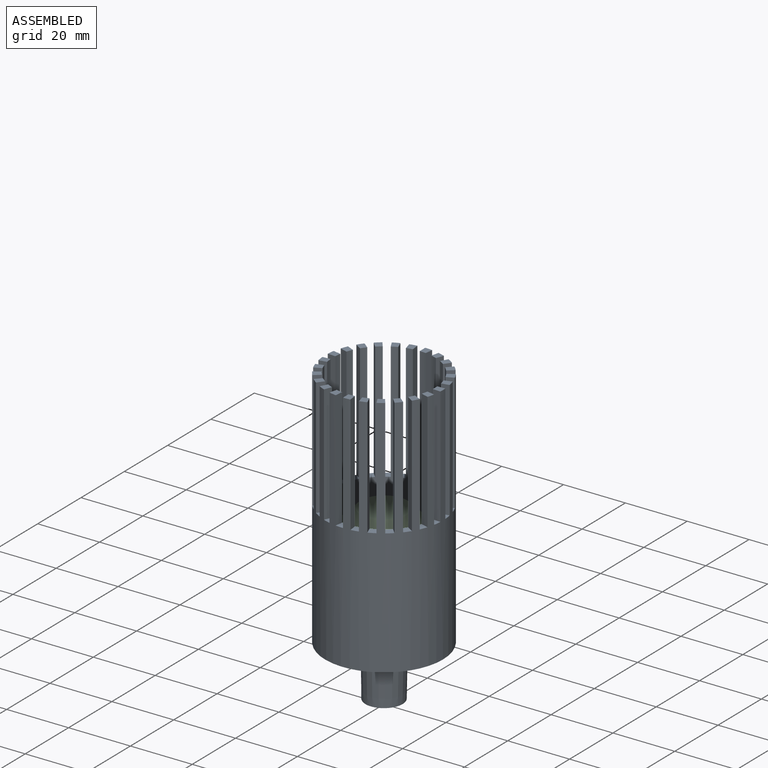
[diagram: assembled view]
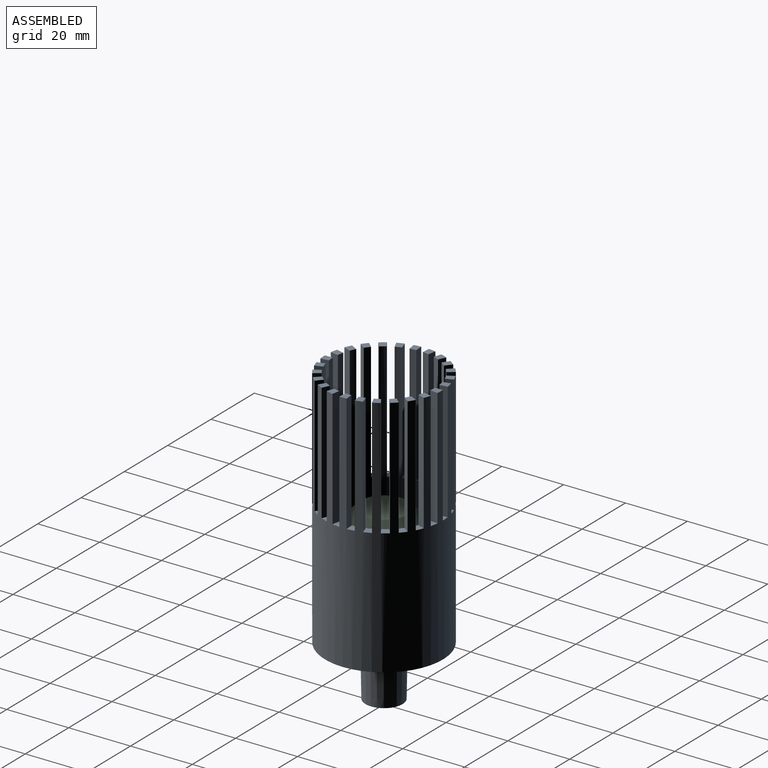
[diagram: assembled view, second angle]
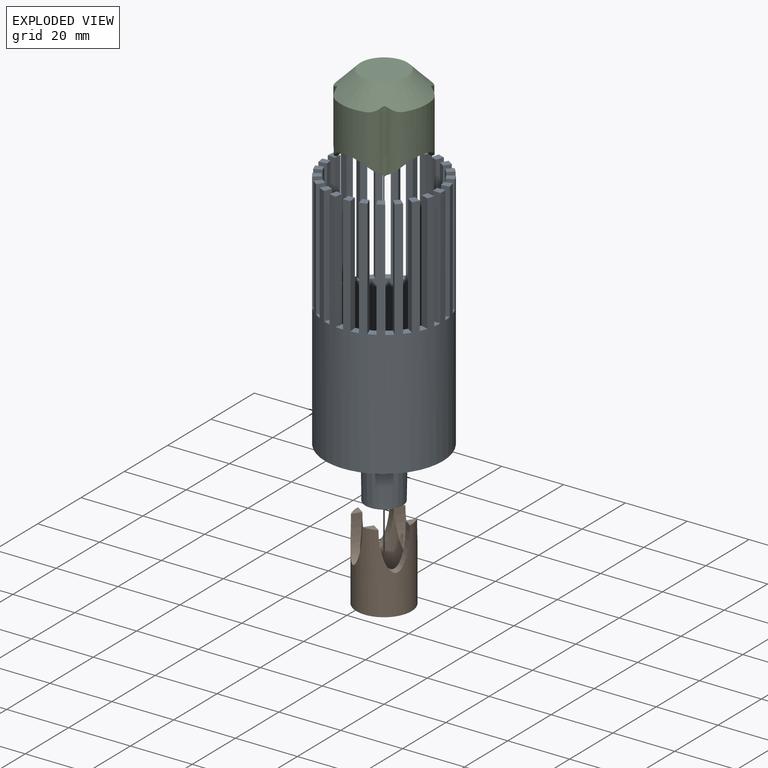
[diagram: exploded view]
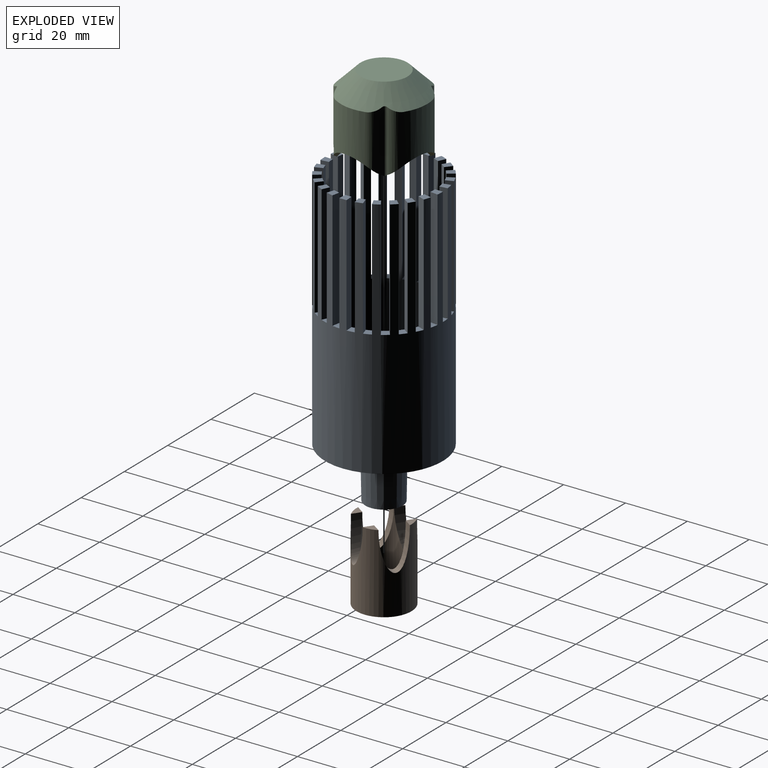
[diagram: exploded view, second angle]
ASSEMBLY  parts=3 mates=2
PART A: 112 faces, bbox 38.1x38.1x95.3 mm
  f0: plane 2.92x2.73mm, normal (0,0,1), area 5.8mm2, adj f25,f27,f30,f102
  f1: plane 3.27x3.15mm, normal (0,0,1), area 5.8mm2, adj f25,f27,f99,f101
  f2: plane 3.42x3.38mm, normal (0,0,1), area 5.8mm2, adj f25,f27,f96,f98
  f3: plane 3.4x3.35mm, normal (0,0,1), area 5.8mm2, adj f25,f27,f93,f95
  f4: plane 3.2x3.07mm, normal (0,0,1), area 5.8mm2, adj f25,f27,f90,f92
  f5: plane 2.81x2.6mm, normal (0,0,1), area 5.8mm2, adj f25,f27,f87,f89
  f6: plane 2.8x2.59mm, normal (0,0,1), area 5.8mm2, adj f25,f27,f84,f86
  f7: plane 3.2x3.06mm, normal (0,0,1), area 5.8mm2, adj f25,f27,f81,f83
  f8: plane 3.4x3.35mm, normal (0,0,1), area 5.8mm2, adj f25,f27,f78,f80
  f9: plane 3.42x3.38mm, normal (0,0,1), area 5.8mm2, adj f25,f27,f75,f77
  f10: plane 3.27x3.16mm, normal (0,0,1), area 5.8mm2, adj f25,f27,f72,f74
  f11: plane 2.92x2.73mm, normal (0,0,1), area 5.8mm2, adj f25,f27,f69,f71
  f12: plane 2.67x2.45mm, normal (0,0,1), area 5.8mm2, adj f25,f27,f66,f68
  f13: plane 3.12x2.96mm, normal (0,0,1), area 5.8mm2, adj f25,f27,f63,f65
  f14: plane 3.37x3.29mm, normal (0,0,1), area 5.8mm2, adj f25,f27,f60,f62
  f15: plane 3.42x3.41mm, normal (0,0,1), area 5.8mm2, adj f25,f27,f57,f59
  f16: plane 3.33x3.23mm, normal (0,0,1), area 5.8mm2, adj f25,f27,f54,f56
  f17: plane 3.03x2.86mm, normal (0,0,1), area 5.8mm2, adj f25,f27,f51,f53
  f18: plane 2.58x2.46mm, normal (0,0,1), area 5.8mm2, adj f25,f27,f48,f50
  f19: plane 3.02x2.85mm, normal (0,0,1), area 5.8mm2, adj f25,f27,f45,f47
  f20: plane 3.33x3.23mm, normal (0,0,1), area 5.8mm2, adj f25,f27,f42,f44
  f21: plane 3.42x3.41mm, normal (0,0,1), area 5.8mm2, adj f25,f27,f39,f41
  f22: plane 3.37x3.3mm, normal (0,0,1), area 5.8mm2, adj f25,f27,f36,f38
  f23: plane 3.12x2.97mm, normal (0,0,1), area 5.8mm2, adj f25,f27,f33,f35
  f24: plane 2.68x2.45mm, normal (0,0,1), area 5.8mm2, adj f25,f27,f29,f32
  f25: cylinder r=19.05mm len=78.74mm, axis (0,0,-1), area 7081.2mm2, adj f0,f1,f2,f3,f4,f5,f6,f7
  f26: plane 38.1x38.1mm, normal (0,0,-1), area 1015.2mm2, adj f25,f107
  f27: cylinder r=16.51mm len=76.2mm, axis (0,0,-1), area 5873.6mm2, adj f0,f1,f2,f3,f4,f5,f6,f7
  f28: plane 33.02x33.02mm, normal (0,0,1), area 729.7mm2, adj f27,f104
  f29: plane 38.1x2.54mm, normal (-1,0,0), area 96.8mm2, adj f24,f25,f27,f31
  f30: plane 38.1x2.52mm, normal (0.99,-0.12,0), area 96.8mm2, adj f0,f25,f27,f31
  f31: plane 2.66x2.32mm, normal (0,0,1), area 5.5mm2, adj f25,f27,f29,f30
  f32: plane 38.1x2.52mm, normal (0.99,0.13,0), area 96.8mm2, adj f24,f25,f27,f34
  f33: plane 38.1x2.46mm, normal (-0.97,-0.25,0), area 96.8mm2, adj f23,f25,f27,f34
  f34: plane 2.9x2.61mm, normal (0,0,1), area 5.5mm2, adj f25,f27,f32,f33
  f35: plane 38.1x2.36mm, normal (0.93,0.37,0), area 96.8mm2, adj f23,f25,f27,f37
  f36: plane 38.1x2.23mm, normal (-0.88,-0.48,0), area 96.8mm2, adj f22,f25,f27,f37
  f37: plane 3.22x3.05mm, normal (0,0,1), area 5.5mm2, adj f25,f27,f35,f36
  f38: plane 38.1x2.05mm, normal (0.81,0.59,0), area 96.8mm2, adj f22,f25,f27,f40
  f39: plane 38.1x1.85mm, normal (-0.73,-0.68,0), area 96.8mm2, adj f21,f25,f27,f40
  f40: plane 3.34x3.29mm, normal (0,0,1), area 5.5mm2, adj f25,f27,f38,f39
  f41: plane 38.1x1.96mm, normal (0.63,0.77,0), area 96.8mm2, adj f21,f25,f27,f43
  f42: plane 38.1x2.14mm, normal (-0.54,-0.84,0), area 96.8mm2, adj f20,f25,f27,f43
  f43: plane 3.33x3.25mm, normal (0,0,1), area 5.5mm2, adj f25,f27,f41,f42
  f44: plane 38.1x2.3mm, normal (0.42,0.91,0), area 96.8mm2, adj f20,f25,f27,f46
  f45: plane 38.1x2.42mm, normal (-0.31,-0.95,0), area 96.8mm2, adj f19,f25,f27,f46
  f46: plane 3.15x2.95mm, normal (0,0,1), area 5.5mm2, adj f25,f27,f44,f45
  f47: plane 38.1x2.5mm, normal (0.18,0.98,0), area 96.8mm2, adj f19,f25,f27,f49
  f48: plane 38.1x2.54mm, normal (-0.06,-1,0), area 96.8mm2, adj f18,f25,f27,f49
  f49: plane 2.78x2.47mm, normal (0,0,1), area 5.5mm2, adj f25,f27,f47,f48
  f50: plane 38.1x2.53mm, normal (-0.07,1,0), area 96.8mm2, adj f18,f25,f27,f52
  f51: plane 38.1x2.5mm, normal (0.19,-0.98,0), area 96.8mm2, adj f17,f25,f27,f52
  f52: plane 2.79x2.48mm, normal (0,0,1), area 5.5mm2, adj f25,f27,f50,f51
  f53: plane 38.1x2.41mm, normal (-0.31,0.95,0), area 96.8mm2, adj f17,f25,f27,f55
  f54: plane 38.1x2.3mm, normal (0.43,-0.9,0), area 96.8mm2, adj f16,f25,f27,f55
  f55: plane 3.16x2.95mm, normal (0,0,1), area 5.5mm2, adj f25,f27,f53,f54
  f56: plane 38.1x2.14mm, normal (-0.54,0.84,0), area 96.8mm2, adj f16,f25,f27,f58
  f57: plane 38.1x1.96mm, normal (0.64,-0.77,0), area 96.8mm2, adj f15,f25,f27,f58
  f58: plane 3.33x3.25mm, normal (0,0,1), area 5.5mm2, adj f25,f27,f56,f57
  f59: plane 38.1x1.86mm, normal (-0.73,0.68,0), area 96.8mm2, adj f15,f25,f27,f61
  f60: plane 38.1x2.06mm, normal (0.81,-0.59,0), area 96.8mm2, adj f14,f25,f27,f61
  f61: plane 3.34x3.29mm, normal (0,0,1), area 5.5mm2, adj f25,f27,f59,f60
  f62: plane 38.1x2.23mm, normal (-0.88,0.48,0), area 96.8mm2, adj f14,f25,f27,f64
  f63: plane 38.1x2.36mm, normal (0.93,-0.37,0), area 96.8mm2, adj f13,f25,f27,f64
  f64: plane 3.22x3.04mm, normal (0,0,1), area 5.5mm2, adj f25,f27,f62,f63
  f65: plane 38.1x2.46mm, normal (-0.97,0.25,0), area 96.8mm2, adj f13,f25,f27,f67
  f66: plane 38.1x2.52mm, normal (0.99,-0.13,0), area 96.8mm2, adj f12,f25,f27,f67
  f67: plane 2.89x2.6mm, normal (0,0,1), area 5.5mm2, adj f25,f27,f65,f66
  f68: plane 38.1x2.54mm, normal (-1,0,0), area 96.8mm2, adj f12,f25,f27,f70
  f69: plane 38.1x2.52mm, normal (0.99,0.13,0), area 96.8mm2, adj f11,f25,f27,f70
  f70: plane 2.67x2.33mm, normal (0,0,1), area 5.5mm2, adj f25,f27,f68,f69
  f71: plane 38.1x2.46mm, normal (-0.97,-0.25,0), area 96.8mm2, adj f11,f25,f27,f73
  f72: plane 38.1x2.36mm, normal (0.93,0.37,0), area 96.8mm2, adj f10,f25,f27,f73
  f73: plane 3.08x2.85mm, normal (0,0,1), area 5.5mm2, adj f25,f27,f71,f72
  f74: plane 38.1x2.22mm, normal (-0.87,-0.48,0), area 96.8mm2, adj f10,f25,f27,f76
  f75: plane 38.1x2.06mm, normal (0.81,0.59,0), area 96.8mm2, adj f9,f25,f27,f76
  f76: plane 3.3x3.19mm, normal (0,0,1), area 5.5mm2, adj f25,f27,f74,f75
  f77: plane 38.1x1.85mm, normal (-0.73,-0.69,0), area 96.8mm2, adj f9,f25,f27,f79
  f78: plane 38.1x1.96mm, normal (0.64,0.77,0), area 96.8mm2, adj f8,f25,f27,f79
  f79: plane 3.33x3.32mm, normal (0,0,1), area 5.5mm2, adj f25,f27,f77,f78
  f80: plane 38.1x2.15mm, normal (-0.53,-0.85,0), area 96.8mm2, adj f8,f25,f27,f82
  f81: plane 38.1x2.3mm, normal (0.43,0.9,0), area 96.8mm2, adj f7,f25,f27,f82
  f82: plane 3.27x3.12mm, normal (0,0,1), area 5.5mm2, adj f25,f27,f80,f81
  f83: plane 38.1x2.42mm, normal (-0.31,-0.95,0), area 96.8mm2, adj f7,f25,f27,f85
  f84: plane 38.1x2.5mm, normal (0.19,0.98,0), area 96.8mm2, adj f6,f25,f27,f85
  f85: plane 2.99x2.73mm, normal (0,0,1), area 5.5mm2, adj f25,f27,f83,f84
  f86: plane 38.1x2.54mm, normal (-0.06,-1,0), area 96.8mm2, adj f6,f25,f27,f88
  f87: plane 38.1x2.54mm, normal (-0.06,1,0), area 96.8mm2, adj f5,f25,f27,f88
  f88: plane 2.57x2.33mm, normal (0,0,1), area 5.5mm2, adj f25,f27,f86,f87
  f89: plane 38.1x2.49mm, normal (0.19,-0.98,0), area 96.8mm2, adj f5,f25,f27,f91
  f90: plane 38.1x2.42mm, normal (-0.31,0.95,0), area 96.8mm2, adj f4,f25,f27,f91
  f91: plane 3x2.74mm, normal (0,0,1), area 5.5mm2, adj f25,f27,f89,f90
  f92: plane 38.1x2.29mm, normal (0.43,-0.9,0), area 96.8mm2, adj f4,f25,f27,f94
  f93: plane 38.1x2.14mm, normal (-0.54,0.84,0), area 96.8mm2, adj f3,f25,f27,f94
  f94: plane 3.27x3.13mm, normal (0,0,1), area 5.5mm2, adj f25,f27,f92,f93
  f95: plane 38.1x1.95mm, normal (0.64,-0.77,0), area 96.8mm2, adj f3,f25,f27,f97
  f96: plane 38.1x1.85mm, normal (-0.73,0.68,0), area 96.8mm2, adj f2,f25,f27,f97
  f97: plane 3.33x3.32mm, normal (0,0,1), area 5.5mm2, adj f25,f27,f95,f96
  f98: plane 38.1x2.06mm, normal (0.81,-0.58,0), area 96.8mm2, adj f2,f25,f27,f100
  f99: plane 38.1x2.23mm, normal (-0.88,0.48,0), area 96.8mm2, adj f1,f25,f27,f100
  f100: plane 3.3x3.19mm, normal (0,0,1), area 5.5mm2, adj f25,f27,f98,f99
  f101: plane 38.1x2.37mm, normal (0.93,-0.36,0), area 96.8mm2, adj f1,f25,f27,f103
  f102: plane 38.1x2.46mm, normal (-0.97,0.25,0), area 96.8mm2, adj f0,f25,f27,f103
  f103: plane 3.08x2.85mm, normal (0,0,1), area 5.5mm2, adj f25,f27,f101,f102
  f104: cone r=6.35mm half-angle=1deg, axis (0,0,-1), area 740.3mm2, adj f28,f105
  f105: plane 12.04x12.04mm, normal (0,0,1), area 21.7mm2, adj f104,f106
  f106: cone r=5.08mm half-angle=1deg, axis (0,0,1), area 628mm2, adj f105,f110
  f107: cone r=6.35mm half-angle=1deg, axis (0,0,1), area 639.3mm2, adj f26,f109
  f108: cone r=5.08mm half-angle=1deg, axis (0,0,-1), area 546.6mm2, adj f109,f111
  f109: plane 12.04x12.04mm, normal (0,0,-1), area 21.7mm2, adj f107,f108
  f110: cylinder r=5.08mm len=10.16mm, axis (0,0,1), area 81.1mm2, adj f106,f111
  f111: plane 10.25x10.25mm, normal (0,0,-1), area 1.4mm2, adj f108,f110
PART B: 11 faces, bbox 17.8x17.8x25.4 mm
  f0: plane 3.25x3.25mm, normal (0,0,1), area 6.2mm2, adj f3,f4,f8,f10
  f1: plane 3.25x3.25mm, normal (0,0,1), area 6.2mm2, adj f3,f4,f8,f9
  f2: plane 3.25x3.25mm, normal (0,0,1), area 6.2mm2, adj f3,f4,f7,f10
  f3: cylinder r=6.35mm len=25.4mm, axis (0,0,-1), area 631.8mm2, adj f0,f1,f2,f5,f6,f7,f8,f9
  f4: cylinder r=8.89mm len=25.4mm, axis (0,0,-1), area 1052.2mm2, adj f0,f1,f2,f5,f6,f7,f8,f9
  f5: plane 3.25x3.25mm, normal (0,0,1), area 6.2mm2, adj f3,f4,f7,f9
  f6: plane 17.78x17.78mm, normal (0,0,-1), area 121.6mm2, adj f3,f4
  f7: extruded ~12.7x8.89mm, area 82.5mm2, adj f2,f3,f4,f5
  f8: extruded ~12.7x8.89mm, area 82.5mm2, adj f0,f1,f3,f4
  f9: extruded ~12.7x8.89mm, area 82.5mm2, adj f1,f3,f4,f5
  f10: extruded ~12.7x8.89mm, area 82.5mm2, adj f0,f2,f3,f4
PART C: 48 faces, bbox 27.9x27.9x25.4 mm
  f0: cylinder r=13.97mm len=15.67mm, axis (0,0,1), area 168.3mm2, adj f9,f35,f41,f42
  f1: cylinder r=13.97mm len=15.67mm, axis (0,0,1), area 168.3mm2, adj f6,f9,f43,f44
  f2: cylinder r=13.97mm len=15.67mm, axis (0,0,1), area 168.3mm2, adj f8,f9,f45,f46
  f3: cylinder r=13.97mm len=15.67mm, axis (0,0,1), area 168.3mm2, adj f7,f9,f40,f47
  f4: plane 0.11x0.11mm, normal (0,0,-1), area 0mm2, adj f6,f35,f38
  f5: plane 0.11x0.11mm, normal (0,0,-1), area 0mm2, adj f7,f35,f39
  f6: cylinder r=10.16mm len=17.6mm, axis (0,-1,0), area 53.4mm2, adj f1,f4,f8,f10,f12,f35,f37,f38
  f7: cylinder r=10.16mm len=17.6mm, axis (0,-1,0), area 53.4mm2, adj f3,f5,f8,f11,f12,f35,f36,f39
  f8: cylinder r=10.16mm len=17.6mm, axis (-1,0,0), area 53.4mm2, adj f2,f6,f7,f10,f11,f12,f36,f37
  f9: cone r=7.62mm half-angle=45deg, axis (0,0,-1), area 577.6mm2, adj f0,f1,f2,f3,f34,f36,f37,f38
  f10: plane 0.11x0.11mm, normal (0,0,-1), area 0mm2, adj f6,f8,f37
  f11: plane 0.11x0.11mm, normal (0,0,-1), area 0mm2, adj f7,f8,f36
  f12: cylinder r=11.43mm len=22.86mm, axis (0,0,1), area 1189.6mm2, adj f6,f7,f8,f13,f35
  f13: plane 22.86x22.86mm, normal (0,0,-1), area 385.5mm2, adj f12,f14,f15,f16,f17,f18,f19,f20
  f14: cylinder r=6.35mm len=2.54mm, axis (0,0,-1), area 0.3mm2, adj f13,f15,f29,f30
  f15: plane 3.16x2.54mm, normal (0,1,0), area 8mm2, adj f13,f14,f16,f30
  f16: cylinder r=8.89mm len=3.25mm, axis (0,0,-1), area 11.8mm2, adj f13,f15,f29,f30
  f17: cylinder r=8.89mm len=3.25mm, axis (0,0,-1), area 11.8mm2, adj f13,f18,f26,f31
  f18: plane 3.16x2.54mm, normal (0,1,0), area 8mm2, adj f13,f17,f19,f31
  f19: cylinder r=6.35mm len=2.54mm, axis (0,0,-1), area 0.3mm2, adj f13,f18,f26,f31
  f20: cylinder r=8.89mm len=3.25mm, axis (0,0,-1), area 11.8mm2, adj f13,f21,f27,f32
  f21: plane 3.16x2.54mm, normal (0,-1,0), area 8mm2, adj f13,f20,f22,f32
  f22: cylinder r=6.35mm len=2.54mm, axis (0,0,-1), area 0.3mm2, adj f13,f21,f27,f32
  f23: plane 3.16x2.54mm, normal (0,-1,0), area 8mm2, adj f13,f24,f28,f33
  f24: cylinder r=8.89mm len=3.25mm, axis (0,0,-1), area 11.8mm2, adj f13,f23,f25,f33
  f25: plane 3.16x2.54mm, normal (1,0,0), area 8mm2, adj f13,f24,f28,f33
  f26: plane 3.16x2.54mm, normal (1,0,0), area 8mm2, adj f13,f17,f19,f31
  f27: plane 3.16x2.54mm, normal (-1,0,0), area 8mm2, adj f13,f20,f22,f32
  f28: cylinder r=6.35mm len=2.54mm, axis (0,0,-1), area 0.3mm2, adj f13,f23,f25,f33
  f29: plane 3.16x2.54mm, normal (-1,0,0), area 8mm2, adj f13,f14,f16,f30
  f30: plane 3.25x3.25mm, normal (0,0,-1), area 6.2mm2, adj f14,f15,f16,f29
  f31: plane 3.25x3.25mm, normal (0,0,-1), area 6.2mm2, adj f17,f18,f19,f26
  f32: plane 3.25x3.25mm, normal (0,0,-1), area 6.2mm2, adj f20,f21,f22,f27
  f33: plane 3.25x3.25mm, normal (0,0,-1), area 6.2mm2, adj f23,f24,f25,f28
  f34: plane 15.24x15.24mm, normal (0,0,1), area 182.4mm2, adj f9
  f35: cylinder r=10.16mm len=17.6mm, axis (-1,0,0), area 53.4mm2, adj f0,f4,f5,f6,f7,f12,f38,f39
  f36: cylinder r=1.45mm len=20.5mm, axis (0,0,-1), area 30.3mm2, adj f7,f8,f9,f11,f46,f47
  f37: cylinder r=1.45mm len=20.5mm, axis (0,0,-1), area 30.3mm2, adj f6,f8,f9,f10,f44,f45
  f38: cylinder r=1.45mm len=20.5mm, axis (0,0,-1), area 30.3mm2, adj f4,f6,f9,f35,f42,f43
  f39: cylinder r=1.45mm len=20.5mm, axis (0,0,-1), area 30.3mm2, adj f5,f7,f9,f35,f40,f41
  f40: cylinder r=5.08mm len=19.77mm, axis (0,0,1), area 79.2mm2, adj f3,f7,f9,f39
  f41: cylinder r=5.08mm len=19.77mm, axis (0,0,1), area 79.2mm2, adj f0,f9,f35,f39
  f42: cylinder r=5.08mm len=19.77mm, axis (0,0,1), area 79.2mm2, adj f0,f9,f35,f38
  f43: cylinder r=5.08mm len=19.77mm, axis (0,0,1), area 79.2mm2, adj f1,f6,f9,f38
  f44: cylinder r=5.08mm len=19.77mm, axis (0,0,1), area 79.2mm2, adj f1,f6,f9,f37
  f45: cylinder r=5.08mm len=19.77mm, axis (0,0,1), area 79.2mm2, adj f2,f8,f9,f37
  f46: cylinder r=5.08mm len=19.77mm, axis (0,0,1), area 79.2mm2, adj f2,f8,f9,f36
  f47: cylinder r=5.08mm len=19.77mm, axis (0,0,1), area 79.2mm2, adj f3,f7,f9,f36
PLACE A t=(0.01,-0.02,-24.8)mm fixed
PLACE B rot(axis=(0,0,-1),124.5deg) t=(0.01,-0.02,-13.41)mm
PLACE C rot(axis=(0,0,-1),9.3deg) t=(0.01,-0.02,-15.95)mm
MATE cylindrical B.f3 <-> A.f106  axis (0,0,-1) through (0.01,-0.02,-13.41)mm
MATE planar C.f32 <-> B.f5  axis (0,0,-1) through (-6.45,-4.66,11.99)mm
